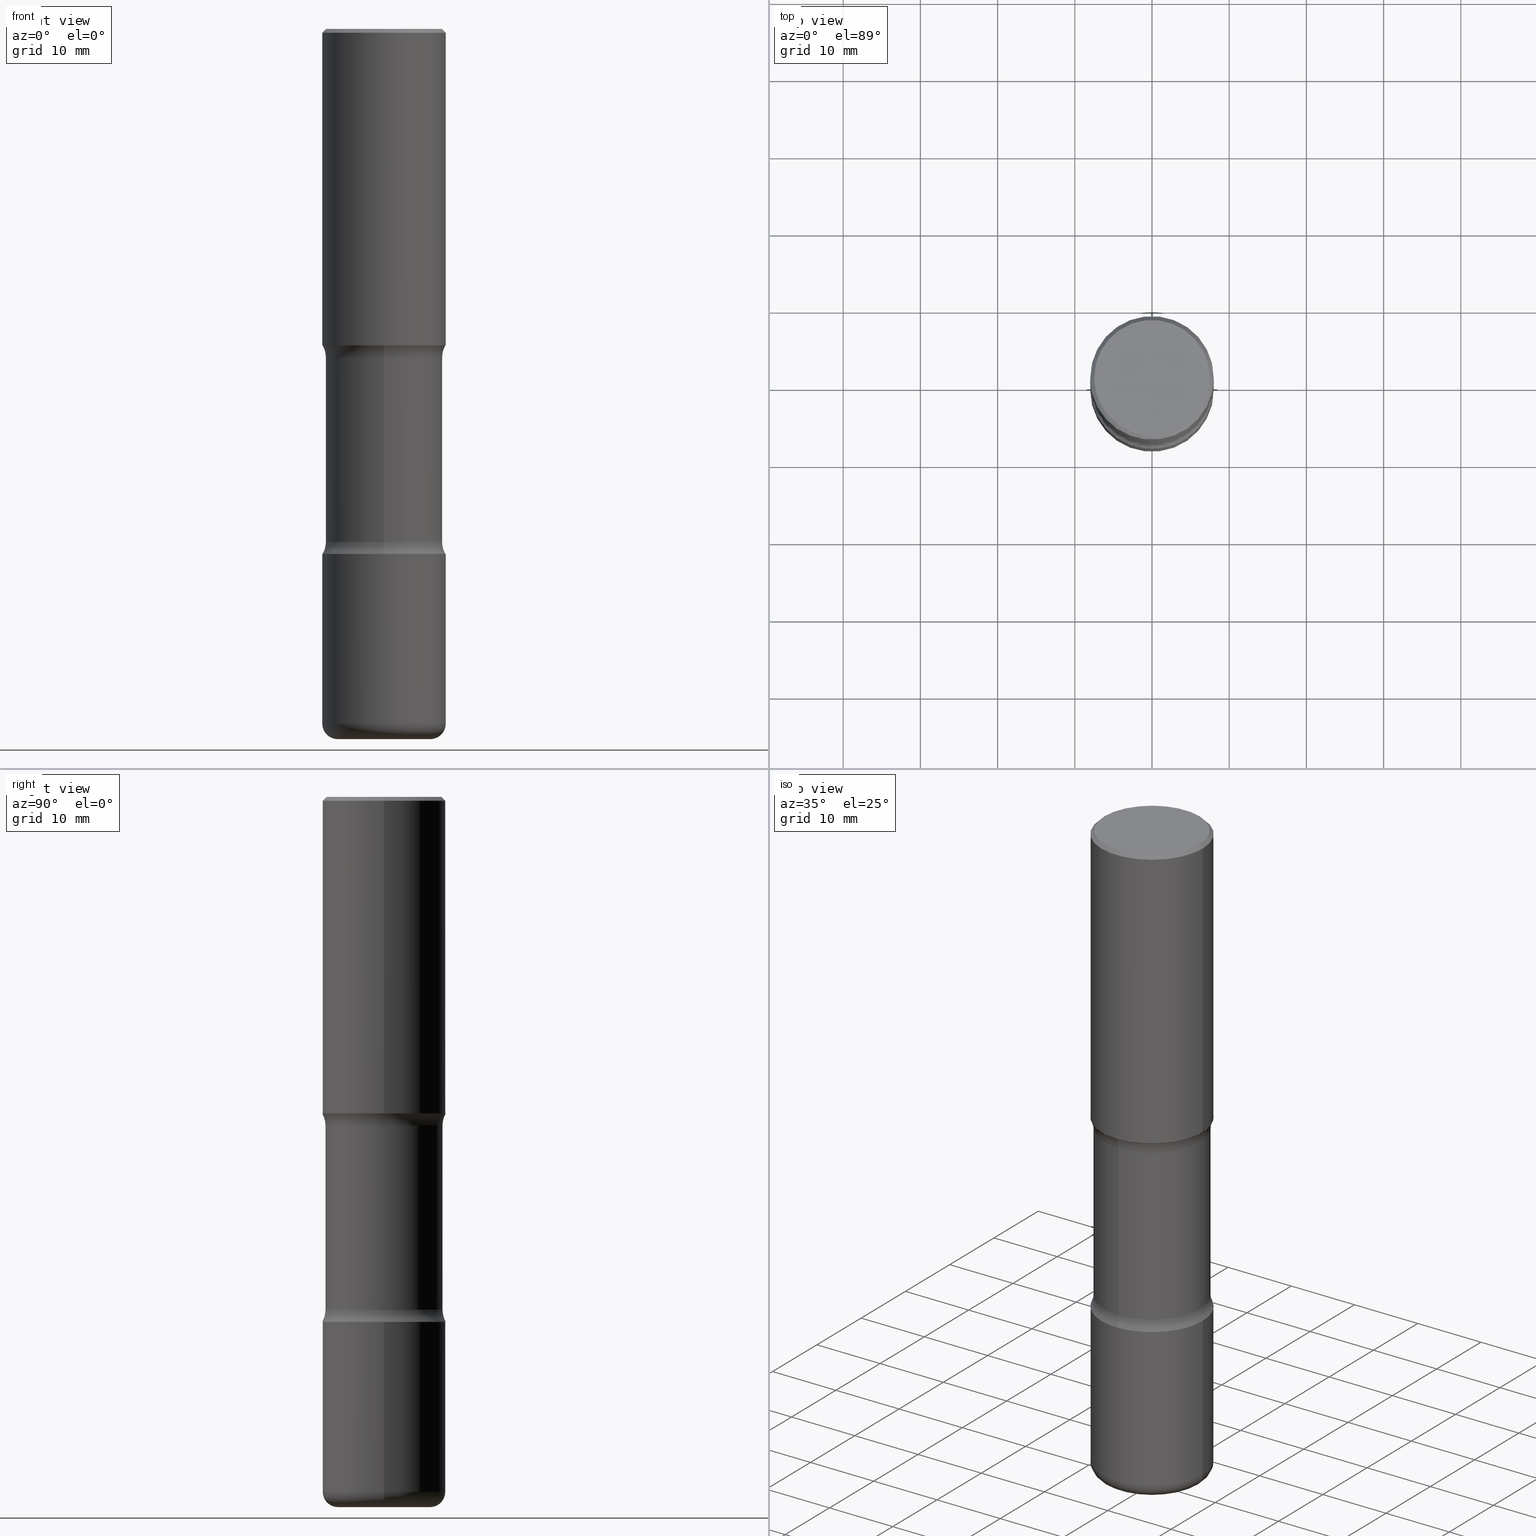
[diagram: canonical four-view strip — front | top / right | iso, engineering-drawing reading convention]
A machine part, canonical four-view strip (front | top / right | iso — engineering-drawing reading convention). The complete STEP part file that produces these views, byte-faithful:
ISO-10303-21;
HEADER;
FILE_DESCRIPTION (( 'STEP AP203' ),
    '1' );
FILE_NAME ('44688.STEP',
    '2024-03-02T02:30:17',
    ( '' ),
    ( '' ),
    'SwSTEP 2.0',
    'SolidWorks 2023',
    '' );
FILE_SCHEMA (( 'CONFIG_CONTROL_DESIGN' ));
ENDSEC;

DATA;
#1 = DIRECTION ( 'NONE',  ( 2.470630472966401970E-29, -3.455448399899237676E-15, -1.000000000000000000 ) ) ;
#2 = ORIENTED_EDGE ( 'NONE', *, *, #230, .F. ) ;
#3 = EDGE_CURVE ( 'NONE', #49, #341, #389, .T. ) ;
#4 = ORIENTED_EDGE ( 'NONE', *, *, #265, .T. ) ;
#5 = VECTOR ( 'NONE', #441, 39.37007874015748143 ) ;
#6 = AXIS2_PLACEMENT_3D ( 'NONE', #437, #534, #66 ) ;
#7 = AXIS2_PLACEMENT_3D ( 'NONE', #378, #548, #57 ) ;
#8 = ORIENTED_EDGE ( 'NONE', *, *, #478, .T. ) ;
#9 = VERTEX_POINT ( 'NONE', #116 ) ;
#10 = EDGE_CURVE ( 'NONE', #174, #259, #254, .T. ) ;
#11 = CIRCLE ( 'NONE', #474, 0.3149500000000002298 ) ;
#12 = APPROVAL_PERSON_ORGANIZATION ( #400, #281, #154 ) ;
#13 = DIRECTION ( 'NONE',  ( -2.445468806185136597E-29, 3.491481338843145583E-15, 1.000000000000000000 ) ) ;
#14 = APPROVAL_STATUS ( 'not_yet_approved' ) ;
#15 = CYLINDRICAL_SURFACE ( 'NONE', #288, 0.2984999999999999321 ) ;
#16 = EDGE_CURVE ( 'NONE', #209, #453, #411, .T. ) ;
#17 = EDGE_LOOP ( 'NONE', ( #480, #517, #19, #95 ) ) ;
#18 = DIRECTION ( 'NONE',  ( -2.445468806185136597E-29, 3.491481338843145583E-15, 1.000000000000000000 ) ) ;
#19 = ORIENTED_EDGE ( 'NONE', *, *, #139, .T. ) ;
#20 = SECURITY_CLASSIFICATION ( '', '', #372 ) ;
#21 = DIRECTION ( 'NONE',  ( 1.000000000000000000, -6.982962677686266711E-15, 0.000000000000000000 ) ) ;
#22 = LINE ( 'NONE', #306, #340 ) ;
#23 = DIRECTION ( 'NONE',  ( 2.445468806185136597E-29, -3.491481338843145583E-15, -1.000000000000000000 ) ) ;
#24 = DIRECTION ( 'NONE',  ( 2.470630472966402250E-29, -3.455448399899237676E-15, -1.000000000000000000 ) ) ;
#25 = EDGE_CURVE ( 'NONE', #341, #86, #509, .T. ) ;
#26 = FACE_OUTER_BOUND ( 'NONE', #45, .T. ) ;
#27 = EDGE_CURVE ( 'NONE', #259, #209, #22, .T. ) ;
#28 = PERSON_AND_ORGANIZATION ( #365, #193 ) ;
#29 = ORIENTED_EDGE ( 'NONE', *, *, #172, .F. ) ;
#30 = DIRECTION ( 'NONE',  ( 1.000000000000000000, -6.982962677686266711E-15, 4.876176775795935232E-29 ) ) ;
#31 = AXIS2_PLACEMENT_3D ( 'NONE', #226, #23, #231 ) ;
#32 = CC_DESIGN_SECURITY_CLASSIFICATION ( #20, ( #224 ) ) ;
#33 = DIRECTION ( 'NONE',  ( 1.000000000000000000, -6.982962677686263555E-15, 0.000000000000000000 ) ) ;
#34 = CARTESIAN_POINT ( 'NONE',  ( 0.3149499999999997857, -2.230543471175005872E-15, -0.02000000000000006981 ) ) ;
#35 = DATE_AND_TIME ( #205, #499 ) ;
#36 = EDGE_LOOP ( 'NONE', ( #479, #4, #376, #379 ) ) ;
#37 = DIRECTION ( 'NONE',  ( 1.000000000000000000, -6.982962677686265922E-15, 4.876176775795935793E-29 ) ) ;
#38 = PRODUCT ( '44688', '44688', '', ( #539 ) ) ;
#39 = ORIENTED_EDGE ( 'NONE', *, *, #119, .F. ) ;
#40 = DIRECTION ( 'NONE',  ( 0.7071067811865471286, -7.319954787623254468E-15, -0.7071067811865479058 ) ) ;
#41 = VECTOR ( 'NONE', #40, 39.37007874015748143 ) ;
#42 = EDGE_CURVE ( 'NONE', #44, #303, #90, .T. ) ;
#43 = EDGE_LOOP ( 'NONE', ( #277, #472 ) ) ;
#44 = VERTEX_POINT ( 'NONE', #191 ) ;
#45 = EDGE_LOOP ( 'NONE', ( #39, #221, #236, #405 ) ) ;
#46 = TOROIDAL_SURFACE ( 'NONE', #433, 0.4235000000000000986, 0.1250000000000000278 ) ;
#47 = CIRCLE ( 'NONE', #331, 0.1250000000000000000 ) ;
#48 = AXIS2_PLACEMENT_3D ( 'NONE', #473, #558, #511 ) ;
#49 = VERTEX_POINT ( 'NONE', #67 ) ;
#50 = ORIENTED_EDGE ( 'NONE', *, *, #367, .F. ) ;
#51 = DIRECTION ( 'NONE',  ( -2.445468806185136597E-29, 3.491481338843145583E-15, 1.000000000000000000 ) ) ;
#52 = PERSON_AND_ORGANIZATION ( #365, #193 ) ;
#53 = AXIS2_PLACEMENT_3D ( 'NONE', #275, #198, #360 ) ;
#54 = CIRCLE ( 'NONE', #518, 0.2949499999999997679 ) ;
#55 = ADVANCED_FACE ( 'NONE', ( #159 ), #196, .F. ) ;
#56 = CARTESIAN_POINT ( 'NONE',  ( 4.890937612370289799E-31, -6.982962677686315028E-17, -0.02000000000000006981 ) ) ;
#57 = DIRECTION ( 'NONE',  ( 1.000000000000000000, 0.000000000000000000, 0.000000000000000000 ) ) ;
#58 = DIRECTION ( 'NONE',  ( -1.000000000000000000, 7.105427357601008170E-15, 0.000000000000000000 ) ) ;
#59 = DATE_AND_TIME ( #269, #79 ) ;
#60 = DIRECTION ( 'NONE',  ( 6.982962677686265922E-15, 1.000000000000000000, -3.660767830705880744E-15 ) ) ;
#61 = DIRECTION ( 'NONE',  ( 1.000000000000000000, -6.982962677686266711E-15, 4.876176775795936353E-29 ) ) ;
#62 = DESIGN_CONTEXT ( 'detailed design', #526, 'design' ) ;
#63 = DIRECTION ( 'NONE',  ( -1.000000000000000000, 6.982962677686265922E-15, -4.883557194083112340E-29 ) ) ;
#64 = AXIS2_PLACEMENT_3D ( 'NONE', #267, #106, #61 ) ;
#65 = CIRCLE ( 'NONE', #498, 0.3149500000000001743 ) ;
#66 = DIRECTION ( 'NONE',  ( 6.860497997771529985E-15, 1.000000000000000000, 0.000000000000000000 ) ) ;
#67 = CARTESIAN_POINT ( 'NONE',  ( 2.199284095337355741E-15, 0.3149499999999907374, -2.677100000000002034 ) ) ;
#68 = ADVANCED_FACE ( 'NONE', ( #354 ), #155, .F. ) ;
#69 = ORIENTED_EDGE ( 'NONE', *, *, #300, .T. ) ;
#70 = ADVANCED_BREP_SHAPE_REPRESENTATION ( '44688', ( #128, #305, #494, #7 ), #105 ) ;
#71 = DIRECTION ( 'NONE',  ( 2.438088387897960049E-29, -3.491481338843145188E-15, -1.000000000000000000 ) ) ;
#72 = PERSON_AND_ORGANIZATION_ROLE ( 'classification_officer' ) ;
#73 = ORIENTED_EDGE ( 'NONE', *, *, #10, .T. ) ;
#74 = DIRECTION ( 'NONE',  ( 2.470630472966402250E-29, -3.455448399899237676E-15, -1.000000000000000000 ) ) ;
#75 = PERSON_AND_ORGANIZATION ( #365, #193 ) ;
#76 = CLOSED_SHELL ( 'NONE', ( #258, #268, #444, #543, #336, #390, #101, #346 ) ) ;
#77 = CIRCLE ( 'NONE', #426, 0.3149500000000002298 ) ;
#78 = DIRECTION ( 'NONE',  ( -2.445468806185136597E-29, 3.491481338843145583E-15, 1.000000000000000000 ) ) ;
#79 = LOCAL_TIME ( 21, 30, 17.00000000000000000, #491 ) ;
#80 = LINE ( 'NONE', #417, #177 ) ;
#81 = PRODUCT_DEFINITION_SHAPE ( 'NONE', 'NONE',  #380 ) ;
#82 = APPROVAL_DATE_TIME ( #289, #153 ) ;
#83 = ORIENTED_EDGE ( 'NONE', *, *, #172, .T. ) ;
#84 = CYLINDRICAL_SURFACE ( 'NONE', #342, 0.3149500000000000632 ) ;
#85 = CARTESIAN_POINT ( 'NONE',  ( -2.047858652334712692E-15, -0.2985000000000125331, -3.621999999999999442 ) ) ;
#86 = VERTEX_POINT ( 'NONE', #136 ) ;
#87 = ORIENTED_EDGE ( 'NONE', *, *, #3, .T. ) ;
#88 = CARTESIAN_POINT ( 'NONE',  ( -2.160713844398106286E-15, -0.3149500000000058919, -1.614099999999999424 ) ) ;
#89 = ORIENTED_EDGE ( 'NONE', *, *, #500, .F. ) ;
#90 = CIRCLE ( 'NONE', #496, 0.2949499999999997679 ) ;
#91 = CIRCLE ( 'NONE', #114, 0.2984999999999998765 ) ;
#92 = CARTESIAN_POINT ( 'NONE',  ( 8.665029620955795190E-29, -1.237136582792291865E-14, -3.543300000000000338 ) ) ;
#93 = VERTEX_POINT ( 'NONE', #345 ) ;
#94 = ORIENTED_EDGE ( 'NONE', *, *, #403, .F. ) ;
#95 = ORIENTED_EDGE ( 'NONE', *, *, #280, .F. ) ;
#96 = EDGE_CURVE ( 'NONE', #93, #282, #287, .T. ) ;
#97 = APPROVAL ( #14, 'UNSPECIFIED' ) ;
#98 = CIRCLE ( 'NONE', #375, 0.07869999999999956197 ) ;
#99 = DIRECTION ( 'NONE',  ( -1.000000000000000000, 6.982962677686265922E-15, -4.876176775795935793E-29 ) ) ;
#100 = DIRECTION ( 'NONE',  ( 6.982962677686266711E-15, 1.000000000000000000, -3.660767830705881533E-15 ) ) ;
#101 = ADVANCED_FACE ( 'NONE', ( #316 ), #46, .F. ) ;
#102 = DIRECTION ( 'NONE',  ( 1.000000000000000000, -6.982962677686265133E-15, 0.000000000000000000 ) ) ;
#103 = AXIS2_PLACEMENT_3D ( 'NONE', #229, #402, #536 ) ;
#104 = CIRCLE ( 'NONE', #176, 0.3149500000000001743 ) ;
#105 =( GEOMETRIC_REPRESENTATION_CONTEXT ( 3 ) GLOBAL_UNCERTAINTY_ASSIGNED_CONTEXT ( ( #324 ) ) GLOBAL_UNIT_ASSIGNED_CONTEXT ( ( #466, #204, #201 ) ) REPRESENTATION_CONTEXT ( 'NONE', 'WORKASPACE' ) );
#106 = DIRECTION ( 'NONE',  ( -2.445468806185136597E-29, 3.491481338843145583E-15, 1.000000000000000000 ) ) ;
#107 = APPROVAL_DATE_TIME ( #440, #97 ) ;
#108 = DIRECTION ( 'NONE',  ( 1.000000000000000000, -6.982962677686265922E-15, 4.876053491004738270E-29 ) ) ;
#109 = DIRECTION ( 'NONE',  ( 2.470630472966402250E-29, -3.455448399899237676E-15, -1.000000000000000000 ) ) ;
#110 = LINE ( 'NONE', #448, #132 ) ;
#111 = ADVANCED_FACE ( 'NONE', ( #492 ), #321, .T. ) ;
#112 = ADVANCED_FACE ( 'NONE', ( #516 ), #531, .T. ) ;
#113 = ORIENTED_EDGE ( 'NONE', *, *, #3, .F. ) ;
#114 = AXIS2_PLACEMENT_3D ( 'NONE', #527, #311, #488 ) ;
#115 = CARTESIAN_POINT ( 'NONE',  ( 6.347495963775277280E-29, -9.198928257466199369E-15, -2.615116957964295441 ) ) ;
#116 = CARTESIAN_POINT ( 'NONE',  ( 0.3149499999999998967, -1.457064992326020852E-14, -3.543300000000000338 ) ) ;
#117 = VERTEX_POINT ( 'NONE', #493 ) ;
#118 = DIRECTION ( 'NONE',  ( 1.000000000000000000, -6.982962677686266711E-15, 4.876176775795935232E-29 ) ) ;
#119 = EDGE_CURVE ( 'NONE', #301, #146, #148, .T. ) ;
#120 = DIRECTION ( 'NONE',  ( -2.445468806185136597E-29, 3.491481338843145583E-15, 1.000000000000000000 ) ) ;
#121 = PERSON_AND_ORGANIZATION ( #365, #193 ) ;
#122 = ORIENTED_EDGE ( 'NONE', *, *, #130, .T. ) ;
#123 = CIRCLE ( 'NONE', #240, 0.3149499999999997857 ) ;
#124 = DIRECTION ( 'NONE',  ( 1.000000000000000000, -6.982962677686266711E-15, 4.876176775795936353E-29 ) ) ;
#125 = LENGTH_MEASURE_WITH_UNIT ( LENGTH_MEASURE( 0.02539999999999999897 ), #297 );
#126 = EDGE_LOOP ( 'NONE', ( #344, #129, #8, #113 ) ) ;
#127 = FACE_OUTER_BOUND ( 'NONE', #131, .T. ) ;
#128 = MANIFOLD_SOLID_BREP ( 'Body-Move/Copy2[1]', #397 ) ;
#129 = ORIENTED_EDGE ( 'NONE', *, *, #230, .T. ) ;
#130 = EDGE_CURVE ( 'NONE', #435, #93, #181, .T. ) ;
#131 = EDGE_LOOP ( 'NONE', ( #163, #381, #255, #272 ) ) ;
#132 = VECTOR ( 'NONE', #490, 39.37007874015748143 ) ;
#133 = ORIENTED_EDGE ( 'NONE', *, *, #151, .T. ) ;
#134 = EDGE_CURVE ( 'NONE', #533, #9, #98, .T. ) ;
#135 = ORIENTED_EDGE ( 'NONE', *, *, #134, .T. ) ;
#136 = CARTESIAN_POINT ( 'NONE',  ( -2.104286248366408700E-15, -0.2985000000000090914, -2.615116957964294109 ) ) ;
#137 = AXIS2_PLACEMENT_3D ( 'NONE', #183, #309, #102 ) ;
#138 = CARTESIAN_POINT ( 'NONE',  ( 0.3149500000000000632, -2.199284095337290265E-15, 1.535751875536930410E-29 ) ) ;
#139 = EDGE_CURVE ( 'NONE', #453, #209, #123, .T. ) ;
#140 = CARTESIAN_POINT ( 'NONE',  ( -0.3149500000000000632, -6.148604816253552124E-16, -1.614100000000000312 ) ) ;
#141 = CALENDAR_DATE ( 2024, 1, 3 ) ;
#142 = PRODUCT_RELATED_PRODUCT_CATEGORY ( 'detail', '', ( #38 ) ) ;
#143 = CARTESIAN_POINT ( 'NONE',  ( 0.2362500000000001821, -1.402109076052630027E-14, -3.543300000000000338 ) ) ;
#144 = AXIS2_PLACEMENT_3D ( 'NONE', #263, #150, #540 ) ;
#145 = VECTOR ( 'NONE', #283, 39.37007874015748143 ) ;
#146 = VERTEX_POINT ( 'NONE', #404 ) ;
#147 = TOROIDAL_SURFACE ( 'NONE', #312, 0.4234999999999999321, 0.1250000000000000000 ) ;
#148 = LINE ( 'NONE', #273, #5 ) ;
#149 = COORDINATED_UNIVERSAL_TIME_OFFSET ( 5, 0, .BEHIND. ) ;
#150 = DIRECTION ( 'NONE',  ( 1.000000000000000000, -6.860497997771530774E-15, 4.841240155857558238E-29 ) ) ;
#151 = EDGE_CURVE ( 'NONE', #298, #533, #308, .T. ) ;
#152 = FACE_OUTER_BOUND ( 'NONE', #242, .T. ) ;
#153 = APPROVAL ( #545, 'UNSPECIFIED' ) ;
#154 = APPROVAL_ROLE ( '' ) ;
#155 = PLANE ( 'NONE',  #175 ) ;
#156 = ORIENTED_EDGE ( 'NONE', *, *, #16, .T. ) ;
#157 = DIRECTION ( 'NONE',  ( -2.445468806185136597E-29, 3.491481338843145583E-15, 1.000000000000000000 ) ) ;
#158 = APPLICATION_PROTOCOL_DEFINITION ( 'international standard', 'config_control_design', 1994, #526 ) ;
#159 = FACE_OUTER_BOUND ( 'NONE', #515, .T. ) ;
#160 = CARTESIAN_POINT ( 'NONE',  ( -0.3149499999999998967, -1.013351148164648424E-14, -3.543300000000000338 ) ) ;
#161 = CARTESIAN_POINT ( 'NONE',  ( -0.2362500000000001821, -1.055049983885156031E-14, -3.621999999999999886 ) ) ;
#162 = DIRECTION ( 'NONE',  ( 2.470630472966402250E-29, -3.455448399899237676E-15, -1.000000000000000000 ) ) ;
#163 = ORIENTED_EDGE ( 'NONE', *, *, #27, .F. ) ;
#164 = CYLINDRICAL_SURFACE ( 'NONE', #412, 0.3149499999999999522 ) ;
#165 = CARTESIAN_POINT ( 'NONE',  ( 6.546764541038231284E-29, -9.347044692216987539E-15, -2.677100000000000701 ) ) ;
#166 = TOROIDAL_SURFACE ( 'NONE', #449, 0.2362500000000001821, 0.07869999999999958973 ) ;
#167 = CARTESIAN_POINT ( 'NONE',  ( -0.3149499999999997857, 2.129454468560425389E-15, -0.02000000000000006981 ) ) ;
#168 = CC_DESIGN_APPROVAL ( #153, ( #20 ) ) ;
#169 = CARTESIAN_POINT ( 'NONE',  ( 4.051117814422036389E-29, -5.920308863460726837E-15, -1.676083042035706239 ) ) ;
#170 = ORIENTED_EDGE ( 'NONE', *, *, #429, .F. ) ;
#171 = LINE ( 'NONE', #335, #41 ) ;
#172 = EDGE_CURVE ( 'NONE', #298, #301, #529, .T. ) ;
#173 = DIRECTION ( 'NONE',  ( 6.982962677686265922E-15, 1.000000000000000000, -3.660767830705880744E-15 ) ) ;
#174 = VERTEX_POINT ( 'NONE', #347 ) ;
#175 = AXIS2_PLACEMENT_3D ( 'NONE', #454, #71, #227 ) ;
#176 = AXIS2_PLACEMENT_3D ( 'NONE', #505, #374, #330 ) ;
#177 = VECTOR ( 'NONE', #1, 39.37007874015748143 ) ;
#178 = EDGE_CURVE ( 'NONE', #533, #298, #262, .T. ) ;
#179 = EDGE_LOOP ( 'NONE', ( #186, #261 ) ) ;
#180 = ORIENTED_EDGE ( 'NONE', *, *, #130, .F. ) ;
#181 = CIRCLE ( 'NONE', #190, 0.2984999999999998765 ) ;
#182 = LOCAL_TIME ( 21, 30, 17.00000000000000000, #149 ) ;
#183 = CARTESIAN_POINT ( 'NONE',  ( 8.857488016002564476E-29, -1.264614540928987199E-14, -3.621999999999999886 ) ) ;
#184 = DIMENSIONAL_EXPONENTS ( 1.000000000000000000, 0.000000000000000000, 0.000000000000000000, 0.000000000000000000, 0.000000000000000000, 0.000000000000000000, 0.000000000000000000 ) ;
#185 = DIRECTION ( 'NONE',  ( -2.445468806185136877E-29, 3.491481338843145188E-15, 1.000000000000000000 ) ) ;
#186 = ORIENTED_EDGE ( 'NONE', *, *, #178, .F. ) ;
#187 = LINE ( 'NONE', #138, #434 ) ;
#188 = DATE_TIME_ROLE ( 'creation_date' ) ;
#189 = AXIS2_PLACEMENT_3D ( 'NONE', #200, #245, #476 ) ;
#190 = AXIS2_PLACEMENT_3D ( 'NONE', #315, #439, #100 ) ;
#191 = CARTESIAN_POINT ( 'NONE',  ( -0.2949499999999997679, 2.094539655171993740E-15, 1.280553747028672311E-17 ) ) ;
#192 = EDGE_CURVE ( 'NONE', #117, #146, #65, .T. ) ;
#193 = ORGANIZATION ( 'UNSPECIFIED', 'UNSPECIFIED', '' ) ;
#194 = EDGE_CURVE ( 'NONE', #174, #453, #110, .T. ) ;
#195 = DIRECTION ( 'NONE',  ( 1.000000000000000000, -6.982962677686269866E-15, 4.883557194083114022E-29 ) ) ;
#196 = PLANE ( 'NONE',  #307 ) ;
#197 = CARTESIAN_POINT ( 'NONE',  ( -2.160713844398079465E-15, -0.3149500000000095556, -2.677099999999999813 ) ) ;
#198 = DIRECTION ( 'NONE',  ( -2.445468806185136597E-29, 3.491481338843145583E-15, 1.000000000000000000 ) ) ;
#199 = DIRECTION ( 'NONE',  ( 2.470630472966401970E-29, -3.455448399899237676E-15, -1.000000000000000000 ) ) ;
#200 = CARTESIAN_POINT ( 'NONE',  ( 1.470677427444996294E-28, -4.269634566494563927E-15, -3.621999999999999886 ) ) ;
#201 =( NAMED_UNIT ( * ) SI_UNIT ( $, .STERADIAN. ) SOLID_ANGLE_UNIT ( ) );
#202 = AXIS2_PLACEMENT_3D ( 'NONE', #165, #368, #207 ) ;
#203 = PLANE ( 'NONE',  #510 ) ;
#204 =( NAMED_UNIT ( * ) PLANE_ANGLE_UNIT ( ) SI_UNIT ( $, .RADIAN. ) );
#205 = CALENDAR_DATE ( 2024, 1, 3 ) ;
#206 = FACE_OUTER_BOUND ( 'NONE', #396, .T. ) ;
#207 = DIRECTION ( 'NONE',  ( 1.000000000000000000, -6.982962677686265922E-15, 0.000000000000000000 ) ) ;
#208 = APPROVAL_DATE_TIME ( #456, #281 ) ;
#209 = VERTEX_POINT ( 'NONE', #395 ) ;
#210 = FACE_OUTER_BOUND ( 'NONE', #43, .T. ) ;
#211 = DIRECTION ( 'NONE',  ( 2.470630472966402250E-29, -3.455448399899237676E-15, -1.000000000000000000 ) ) ;
#212 = ADVANCED_FACE ( 'NONE', ( #398 ), #166, .T. ) ;
#213 = AXIS2_PLACEMENT_3D ( 'NONE', #416, #157, #33 ) ;
#214 = CARTESIAN_POINT ( 'NONE',  ( 3.920484348274944932E-29, -5.673903043124096265E-15, -1.614100000000000312 ) ) ;
#215 = LOCAL_TIME ( 21, 30, 17.00000000000000000, #458 ) ;
#216 = ORIENTED_EDGE ( 'NONE', *, *, #192, .F. ) ;
#217 = ORIENTED_EDGE ( 'NONE', *, *, #25, .F. ) ;
#218 = ORIENTED_EDGE ( 'NONE', *, *, #319, .T. ) ;
#219 = AXIS2_PLACEMENT_3D ( 'NONE', #501, #63, #313 ) ;
#220 = AXIS2_PLACEMENT_3D ( 'NONE', #406, #409, #362 ) ;
#221 = ORIENTED_EDGE ( 'NONE', *, *, #367, .T. ) ;
#222 = CARTESIAN_POINT ( 'NONE',  ( 3.920484348274944932E-29, -5.673903043124096265E-15, -1.614100000000000312 ) ) ;
#223 = AXIS2_PLACEMENT_3D ( 'NONE', #547, #74, #318 ) ;
#224 = PRODUCT_DEFINITION_FORMATION_WITH_SPECIFIED_SOURCE ( 'ANY', '', #38, .NOT_KNOWN. ) ;
#225 = FACE_OUTER_BOUND ( 'NONE', #17, .T. ) ;
#226 = CARTESIAN_POINT ( 'NONE',  ( 4.890937612370289799E-31, -6.982962677686315028E-17, -0.02000000000000006981 ) ) ;
#227 = DIRECTION ( 'NONE',  ( -1.000000000000000000, 6.982962677686265922E-15, -4.876176775795935793E-29 ) ) ;
#228 = CIRCLE ( 'NONE', #6, 0.1250000000000000278 ) ;
#229 = CARTESIAN_POINT ( 'NONE',  ( 4.890937612370289799E-31, -6.982962677686315028E-17, -0.02000000000000006981 ) ) ;
#230 = EDGE_CURVE ( 'NONE', #304, #86, #228, .T. ) ;
#231 = DIRECTION ( 'NONE',  ( -1.000000000000000000, 6.982962677686266711E-15, 0.000000000000000000 ) ) ;
#232 = DIRECTION ( 'NONE',  ( 6.982962677686265922E-15, 1.000000000000000000, -3.455448399899237676E-15 ) ) ;
#233 = CARTESIAN_POINT ( 'NONE',  ( 2.199284095337330103E-15, 0.3149499999999945676, -1.614100000000001423 ) ) ;
#234 = EDGE_LOOP ( 'NONE', ( #94, #419, #422, #156 ) ) ;
#235 = SHAPE_DEFINITION_REPRESENTATION ( #81, #70 ) ;
#236 = ORIENTED_EDGE ( 'NONE', *, *, #264, .T. ) ;
#237 = DIRECTION ( 'NONE',  ( -6.982962677686266711E-15, -1.000000000000000000, 0.000000000000000000 ) ) ;
#238 = CC_DESIGN_DATE_AND_TIME_ASSIGNMENT ( #35, #241, ( #20 ) ) ;
#239 = DIRECTION ( 'NONE',  ( -1.000000000000000000, 6.982962677686266711E-15, 0.000000000000000000 ) ) ;
#240 = AXIS2_PLACEMENT_3D ( 'NONE', #56, #13, #21 ) ;
#241 = DATE_TIME_ROLE ( 'classification_date' ) ;
#242 = EDGE_LOOP ( 'NONE', ( #122, #430, #217, #519 ) ) ;
#243 = AXIS2_PLACEMENT_3D ( 'NONE', #337, #544, #250 ) ;
#244 = FACE_OUTER_BOUND ( 'NONE', #447, .T. ) ;
#245 = DIRECTION ( 'NONE',  ( 2.438088387897960049E-29, -3.491481338843145188E-15, -1.000000000000000000 ) ) ;
#246 = CARTESIAN_POINT ( 'NONE',  ( 4.051117814422036389E-29, -5.920308863460726837E-15, -1.676083042035706239 ) ) ;
#247 = COORDINATED_UNIVERSAL_TIME_OFFSET ( 5, 0, .BEHIND. ) ;
#248 = DIRECTION ( 'NONE',  ( -2.438088387897960049E-29, 3.491481338843145188E-15, 1.000000000000000000 ) ) ;
#249 = ADVANCED_FACE ( 'NONE', ( #225 ), #481, .T. ) ;
#250 = DIRECTION ( 'NONE',  ( 1.000000000000000000, -6.982962677686268288E-15, 0.000000000000000000 ) ) ;
#251 = CC_DESIGN_PERSON_AND_ORGANIZATION_ASSIGNMENT ( #408, #506, ( #224 ) ) ;
#252 = DIRECTION ( 'NONE',  ( -2.445468806185136597E-29, 3.491481338843145583E-15, 1.000000000000000000 ) ) ;
#253 = FACE_OUTER_BOUND ( 'NONE', #234, .T. ) ;
#254 = CIRCLE ( 'NONE', #53, 0.3149500000000000632 ) ;
#255 = ORIENTED_EDGE ( 'NONE', *, *, #194, .T. ) ;
#256 = AXIS2_PLACEMENT_3D ( 'NONE', #465, #248, #37 ) ;
#257 = DIRECTION ( 'NONE',  ( 6.982962677686265922E-15, 1.000000000000000000, -3.455448399899237676E-15 ) ) ;
#258 = ADVANCED_FACE ( 'NONE', ( #152 ), #15, .T. ) ;
#259 = VERTEX_POINT ( 'NONE', #140 ) ;
#260 = EDGE_CURVE ( 'NONE', #282, #295, #77, .T. ) ;
#261 = ORIENTED_EDGE ( 'NONE', *, *, #151, .F. ) ;
#262 = CIRCLE ( 'NONE', #460, 0.2362500000000001821 ) ;
#263 = CARTESIAN_POINT ( 'NONE',  ( -2.905420902056202653E-15, -0.4235000000000058717, -1.676083042035704684 ) ) ;
#264 = EDGE_CURVE ( 'NONE', #9, #117, #187, .T. ) ;
#265 = EDGE_CURVE ( 'NONE', #93, #435, #91, .T. ) ;
#266 = CARTESIAN_POINT ( 'NONE',  ( 8.857488016002564476E-29, -1.264614540928987199E-14, -3.621999999999999886 ) ) ;
#267 = CARTESIAN_POINT ( 'NONE',  ( 0.000000000000000000, 0.000000000000000000, 0.000000000000000000 ) ) ;
#268 = ADVANCED_FACE ( 'NONE', ( #497 ), #557, .F. ) ;
#269 = CALENDAR_DATE ( 2024, 1, 3 ) ;
#270 = CARTESIAN_POINT ( 'NONE',  ( 2.059624841783562486E-15, 0.2949499999999997679, -1.023409652156634153E-15 ) ) ;
#271 = CARTESIAN_POINT ( 'NONE',  ( 8.665029620955795190E-29, -1.237136582792291865E-14, -3.543300000000000338 ) ) ;
#272 = ORIENTED_EDGE ( 'NONE', *, *, #16, .F. ) ;
#273 = CARTESIAN_POINT ( 'NONE',  ( -0.3149500000000000632, 2.237854346276435985E-15, -1.549218606675782956E-29 ) ) ;
#274 = AXIS2_PLACEMENT_3D ( 'NONE', #514, #555, #333 ) ;
#275 = CARTESIAN_POINT ( 'NONE',  ( 3.947231200063430288E-29, -5.635600029026721857E-15, -1.614100000000000312 ) ) ;
#276 = CIRCLE ( 'NONE', #530, 0.2984999999999999876 ) ;
#277 = ORIENTED_EDGE ( 'NONE', *, *, #471, .T. ) ;
#278 = CARTESIAN_POINT ( 'NONE',  ( 0.2949499999999997679, -2.127023677808858891E-15, 1.280553747031588939E-17 ) ) ;
#279 = CARTESIAN_POINT ( 'NONE',  ( -3.131554243005663153E-46, 4.471029511141347348E-32, 1.280553747030124924E-17 ) ) ;
#280 = EDGE_CURVE ( 'NONE', #44, #209, #423, .T. ) ;
#281 = APPROVAL ( #535, 'UNSPECIFIED' ) ;
#282 = VERTEX_POINT ( 'NONE', #88 ) ;
#283 = DIRECTION ( 'NONE',  ( -0.7071067811865471286, 2.468850131082252722E-15, -0.7071067811865479058 ) ) ;
#284 = DIRECTION ( 'NONE',  ( 2.445468806185136597E-29, -3.491481338843145583E-15, -1.000000000000000000 ) ) ;
#285 = CARTESIAN_POINT ( 'NONE',  ( 0.000000000000000000, 0.000000000000000000, 0.000000000000000000 ) ) ;
#286 = DIRECTION ( 'NONE',  ( 1.000000000000000000, -6.982962677686263555E-15, 0.000000000000000000 ) ) ;
#287 = CIRCLE ( 'NONE', #144, 0.1250000000000000000 ) ;
#288 = AXIS2_PLACEMENT_3D ( 'NONE', #393, #484, #524 ) ;
#289 = DATE_AND_TIME ( #369, #215 ) ;
#290 = AXIS2_PLACEMENT_3D ( 'NONE', #503, #284, #239 ) ;
#291 = FACE_OUTER_BOUND ( 'NONE', #520, .T. ) ;
#292 = ADVANCED_FACE ( 'NONE', ( #127 ), #164, .T. ) ;
#293 = CC_DESIGN_DATE_AND_TIME_ASSIGNMENT ( #59, #188, ( #380 ) ) ;
#294 = CARTESIAN_POINT ( 'NONE',  ( 6.393627348577659776E-29, -9.132865488793823452E-15, -2.615116957964295441 ) ) ;
#295 = VERTEX_POINT ( 'NONE', #233 ) ;
#296 = CARTESIAN_POINT ( 'NONE',  ( 0.000000000000000000, 0.000000000000000000, 0.000000000000000000 ) ) ;
#297 =( LENGTH_UNIT ( ) NAMED_UNIT ( * ) SI_UNIT ( $, .METRE. ) );
#298 = VERTEX_POINT ( 'NONE', #161 ) ;
#299 = DIRECTION ( 'NONE',  ( 2.470630472966402250E-29, -3.455448399899237676E-15, -1.000000000000000000 ) ) ;
#300 = EDGE_CURVE ( 'NONE', #303, #44, #54, .T. ) ;
#301 = VERTEX_POINT ( 'NONE', #160 ) ;
#302 = AXIS2_PLACEMENT_3D ( 'NONE', #92, #325, #286 ) ;
#303 = VERTEX_POINT ( 'NONE', #278 ) ;
#304 = VERTEX_POINT ( 'NONE', #197 ) ;
#305 = MANIFOLD_SOLID_BREP ( 'Body-Move/Copy2[2]', #556 ) ;
#306 = CARTESIAN_POINT ( 'NONE',  ( -0.3149499999999999522, 2.237854346276435196E-15, -1.549218606675782116E-29 ) ) ;
#307 = AXIS2_PLACEMENT_3D ( 'NONE', #270, #442, #99 ) ;
#308 = CIRCLE ( 'NONE', #137, 0.2362500000000001821 ) ;
#309 = DIRECTION ( 'NONE',  ( -2.445468806185136597E-29, 3.491481338843145583E-15, 1.000000000000000000 ) ) ;
#310 = DIRECTION ( 'NONE',  ( 2.470630472966402250E-29, -3.455448399899237676E-15, -1.000000000000000000 ) ) ;
#311 = DIRECTION ( 'NONE',  ( 2.470630472966402250E-29, -3.455448399899237676E-15, -1.000000000000000000 ) ) ;
#312 = AXIS2_PLACEMENT_3D ( 'NONE', #169, #299, #371 ) ;
#313 = DIRECTION ( 'NONE',  ( -6.982962677686265133E-15, -1.000000000000000000, 0.000000000000000000 ) ) ;
#314 = CARTESIAN_POINT ( 'NONE',  ( 6.546764541038231284E-29, -9.347044692216987539E-15, -2.677100000000000701 ) ) ;
#315 = CARTESIAN_POINT ( 'NONE',  ( 4.073621540735516440E-29, -5.888082246547263507E-15, -1.676083042035706239 ) ) ;
#316 = FACE_OUTER_BOUND ( 'NONE', #468, .T. ) ;
#317 = ORIENTED_EDGE ( 'NONE', *, *, #429, .T. ) ;
#318 = DIRECTION ( 'NONE',  ( 6.982962677686265922E-15, 1.000000000000000000, -3.660767830705881533E-15 ) ) ;
#319 = EDGE_CURVE ( 'NONE', #435, #295, #47, .T. ) ;
#320 = AXIS2_PLACEMENT_3D ( 'NONE', #351, #443, #58 ) ;
#321 = PLANE ( 'NONE',  #189 ) ;
#322 = APPROVAL_PERSON_ORGANIZATION ( #121, #153, #553 ) ;
#323 = DIRECTION ( 'NONE',  ( 6.982962677686265922E-15, 1.000000000000000000, -3.455448399899237676E-15 ) ) ;
#324 = UNCERTAINTY_MEASURE_WITH_UNIT (LENGTH_MEASURE( 1.000000000000000082E-05 ), #466, 'distance_accuracy_value', 'NONE');
#325 = DIRECTION ( 'NONE',  ( -2.445468806185136597E-29, 3.491481338843145583E-15, 1.000000000000000000 ) ) ;
#326 = CYLINDRICAL_SURFACE ( 'NONE', #223, 0.2984999999999999321 ) ;
#327 = LINE ( 'NONE', #85, #413 ) ;
#328 = CALENDAR_DATE ( 2024, 1, 3 ) ;
#329 = DIRECTION ( 'NONE',  ( 2.470630472966402250E-29, -3.455448399899237676E-15, -1.000000000000000000 ) ) ;
#330 = DIRECTION ( 'NONE',  ( 6.982962677686264344E-15, 1.000000000000000000, -3.469564049740291192E-15 ) ) ;
#331 = AXIS2_PLACEMENT_3D ( 'NONE', #420, #457, #237 ) ;
#332 = CONICAL_SURFACE ( 'NONE', #290, 0.3149499999999997857, 0.7853981633974477239 ) ;
#333 = DIRECTION ( 'NONE',  ( -6.982962677686265922E-15, -1.000000000000000000, 3.455448399899237676E-15 ) ) ;
#334 = ORIENTED_EDGE ( 'NONE', *, *, #96, .F. ) ;
#335 = CARTESIAN_POINT ( 'NONE',  ( 0.3149499999999997857, -2.230543471175005872E-15, -0.02000000000000006981 ) ) ;
#336 = ADVANCED_FACE ( 'NONE', ( #244 ), #203, .F. ) ;
#337 = CARTESIAN_POINT ( 'NONE',  ( 3.947231200063430288E-29, -5.635600029026721857E-15, -1.614100000000000312 ) ) ;
#338 = ORIENTED_EDGE ( 'NONE', *, *, #119, .T. ) ;
#339 = ADVANCED_FACE ( 'NONE', ( #508 ), #523, .T. ) ;
#340 = VECTOR ( 'NONE', #452, 39.37007874015748143 ) ;
#341 = VERTEX_POINT ( 'NONE', #366 ) ;
#342 = AXIS2_PLACEMENT_3D ( 'NONE', #550, #120, #124 ) ;
#343 = ORIENTED_EDGE ( 'NONE', *, *, #410, .T. ) ;
#344 = ORIENTED_EDGE ( 'NONE', *, *, #552, .F. ) ;
#345 = CARTESIAN_POINT ( 'NONE',  ( -2.104286248366433550E-15, -0.2985000000000057607, -1.676083042035705128 ) ) ;
#346 = ADVANCED_FACE ( 'NONE', ( #538 ), #326, .T. ) ;
#347 = CARTESIAN_POINT ( 'NONE',  ( 0.3149500000000000632, -7.834884124364012517E-15, -1.614100000000000312 ) ) ;
#348 = CIRCLE ( 'NONE', #243, 0.3149500000000000632 ) ;
#349 = DIRECTION ( 'NONE',  ( 1.000000000000000000, -6.982962677686265133E-15, 0.000000000000000000 ) ) ;
#350 = ADVANCED_FACE ( 'NONE', ( #26 ), #84, .T. ) ;
#351 = CARTESIAN_POINT ( 'NONE',  ( -0.2362500000000001821, -1.069270861468967988E-14, -3.543300000000000338 ) ) ;
#352 = EDGE_LOOP ( 'NONE', ( #436, #507 ) ) ;
#353 = DIRECTION ( 'NONE',  ( -6.982962677686266711E-15, -1.000000000000000000, 3.491481338843145583E-15 ) ) ;
#354 = FACE_OUTER_BOUND ( 'NONE', #352, .T. ) ;
#355 = DIRECTION ( 'NONE',  ( 1.000000000000000000, -6.982962677686265922E-15, 0.000000000000000000 ) ) ;
#356 = PERSON_AND_ORGANIZATION_ROLE ( 'creator' ) ;
#357 = ORIENTED_EDGE ( 'NONE', *, *, #264, .F. ) ;
#358 = CARTESIAN_POINT ( 'NONE',  ( 3.947231200063430288E-29, -5.635600029026721857E-15, -1.614100000000000312 ) ) ;
#359 = ADVANCED_FACE ( 'NONE', ( #291 ), #504, .T. ) ;
#360 = DIRECTION ( 'NONE',  ( 1.000000000000000000, -6.982962677686268288E-15, 0.000000000000000000 ) ) ;
#361 = ORIENTED_EDGE ( 'NONE', *, *, #194, .F. ) ;
#362 = DIRECTION ( 'NONE',  ( 1.000000000000000000, -6.982962677686269866E-15, 4.883557194083114022E-29 ) ) ;
#363 = TOROIDAL_SURFACE ( 'NONE', #438, 0.4234999999999999321, 0.1250000000000000000 ) ;
#364 = APPLICATION_PROTOCOL_DEFINITION ( 'international standard', 'config_control_design', 1994, #477 ) ;
#365 = PERSON ( 'UNSPECIFIED', 'UNSPECIFIED', 'UNSPECIFIED', ('UNSPECIFIED'), ('UNSPECIFIED'), ('UNSPECIFIED') ) ;
#366 = CARTESIAN_POINT ( 'NONE',  ( 2.084414359289414101E-15, 0.2984999999999908282, -2.615116957964296329 ) ) ;
#367 = EDGE_CURVE ( 'NONE', #301, #9, #399, .T. ) ;
#368 = DIRECTION ( 'NONE',  ( -2.445468806185136597E-29, 3.491481338843145583E-15, 1.000000000000000000 ) ) ;
#369 = CALENDAR_DATE ( 2024, 1, 3 ) ;
#370 = PLANE ( 'NONE',  #256 ) ;
#371 = DIRECTION ( 'NONE',  ( 6.982962677686265922E-15, 1.000000000000000000, -3.455448399899237676E-15 ) ) ;
#372 = SECURITY_CLASSIFICATION_LEVEL ( 'unclassified' ) ;
#373 = PLANE ( 'NONE',  #274 ) ;
#374 = DIRECTION ( 'NONE',  ( 2.470630472966402250E-29, -3.455448399899237676E-15, -1.000000000000000000 ) ) ;
#375 = AXIS2_PLACEMENT_3D ( 'NONE', #143, #353, #392 ) ;
#376 = ORIENTED_EDGE ( 'NONE', *, *, #427, .T. ) ;
#377 = DIRECTION ( 'NONE',  ( 2.470630472966402250E-29, -3.455448399899237676E-15, -1.000000000000000000 ) ) ;
#378 = CARTESIAN_POINT ( 'NONE',  ( 0.000000000000000000, 0.000000000000000000, 0.000000000000000000 ) ) ;
#379 = ORIENTED_EDGE ( 'NONE', *, *, #478, .F. ) ;
#380 = PRODUCT_DEFINITION ( 'UNKNOWN', '', #224, #62 ) ;
#381 = ORIENTED_EDGE ( 'NONE', *, *, #500, .T. ) ;
#382 = ORIENTED_EDGE ( 'NONE', *, *, #471, .F. ) ;
#383 = AXIS2_PLACEMENT_3D ( 'NONE', #115, #329, #469 ) ;
#384 = EDGE_LOOP ( 'NONE', ( #29, #133, #135, #50 ) ) ;
#385 = ADVANCED_FACE ( 'NONE', ( #206 ), #370, .F. ) ;
#386 = CC_DESIGN_PERSON_AND_ORGANIZATION_ASSIGNMENT ( #445, #532, ( #38 ) ) ;
#387 = ORIENTED_EDGE ( 'NONE', *, *, #260, .T. ) ;
#388 = ORIENTED_EDGE ( 'NONE', *, *, #260, .F. ) ;
#389 = CIRCLE ( 'NONE', #219, 0.1250000000000000278 ) ;
#390 = ADVANCED_FACE ( 'NONE', ( #210 ), #373, .F. ) ;
#391 = AXIS2_PLACEMENT_3D ( 'NONE', #285, #459, #118 ) ;
#392 = DIRECTION ( 'NONE',  ( 1.000000000000000000, -6.982962677686259611E-15, 0.000000000000000000 ) ) ;
#393 = CARTESIAN_POINT ( 'NONE',  ( 8.881263274944184275E-29, -1.261209788528177595E-14, -3.622000000000000330 ) ) ;
#394 = APPROVAL_ROLE ( '' ) ;
#395 = CARTESIAN_POINT ( 'NONE',  ( -0.3149499999999997857, 2.129454468560425389E-15, -0.02000000000000006981 ) ) ;
#396 = EDGE_LOOP ( 'NONE', ( #475, #89 ) ) ;
#397 = CLOSED_SHELL ( 'NONE', ( #112, #212, #111, #339, #350, #68 ) ) ;
#398 = FACE_OUTER_BOUND ( 'NONE', #537, .T. ) ;
#399 = CIRCLE ( 'NONE', #213, 0.3149500000000000077 ) ;
#400 = PERSON_AND_ORGANIZATION ( #365, #193 ) ;
#401 = CC_DESIGN_APPROVAL ( #281, ( #224 ) ) ;
#402 = DIRECTION ( 'NONE',  ( -2.445468806185136597E-29, 3.491481338843145583E-15, 1.000000000000000000 ) ) ;
#403 = EDGE_CURVE ( 'NONE', #303, #453, #171, .T. ) ;
#404 = CARTESIAN_POINT ( 'NONE',  ( -0.3149500000000001743, -8.621350913793515532E-15, -2.677100000000000701 ) ) ;
#405 = ORIENTED_EDGE ( 'NONE', *, *, #455, .F. ) ;
#406 = CARTESIAN_POINT ( 'NONE',  ( 8.665029620955795190E-29, -1.237136582792291865E-14, -3.543300000000000338 ) ) ;
#407 = ORIENTED_EDGE ( 'NONE', *, *, #27, .T. ) ;
#408 = PERSON_AND_ORGANIZATION ( #365, #193 ) ;
#409 = DIRECTION ( 'NONE',  ( -2.445468806185136597E-29, 3.491481338843145583E-15, 1.000000000000000000 ) ) ;
#410 = EDGE_CURVE ( 'NONE', #295, #282, #11, .T. ) ;
#411 = CIRCLE ( 'NONE', #103, 0.3149499999999997857 ) ;
#412 = AXIS2_PLACEMENT_3D ( 'NONE', #296, #78, #30 ) ;
#413 = VECTOR ( 'NONE', #414, 39.37007874015748143 ) ;
#414 = DIRECTION ( 'NONE',  ( 2.470630472966401970E-29, -3.455448399899237676E-15, -1.000000000000000000 ) ) ;
#415 = ORIENTED_EDGE ( 'NONE', *, *, #42, .T. ) ;
#416 = CARTESIAN_POINT ( 'NONE',  ( 8.665029620955795190E-29, -1.237136582792291865E-14, -3.543300000000000338 ) ) ;
#417 = CARTESIAN_POINT ( 'NONE',  ( 2.084414359289438950E-15, 0.2984999999999873310, -3.622000000000001219 ) ) ;
#418 = PERSON_AND_ORGANIZATION_ROLE ( 'creator' ) ;
#419 = ORIENTED_EDGE ( 'NONE', *, *, #42, .F. ) ;
#420 = CARTESIAN_POINT ( 'NONE',  ( 2.957284694000173774E-15, 0.4234999999999939924, -1.676083042035707571 ) ) ;
#421 = FACE_OUTER_BOUND ( 'NONE', #546, .T. ) ;
#422 = ORIENTED_EDGE ( 'NONE', *, *, #280, .T. ) ;
#423 = LINE ( 'NONE', #167, #145 ) ;
#424 = CARTESIAN_POINT ( 'NONE',  ( 0.2362500000000001821, -1.429587034189325203E-14, -3.621999999999999886 ) ) ;
#425 = AXIS2_PLACEMENT_3D ( 'NONE', #489, #24, #60 ) ;
#426 = AXIS2_PLACEMENT_3D ( 'NONE', #222, #310, #486 ) ;
#427 = EDGE_CURVE ( 'NONE', #435, #341, #80, .T. ) ;
#428 = CIRCLE ( 'NONE', #48, 0.3149500000000001743 ) ;
#429 = EDGE_CURVE ( 'NONE', #9, #301, #542, .T. ) ;
#430 = ORIENTED_EDGE ( 'NONE', *, *, #470, .T. ) ;
#431 = ORIENTED_EDGE ( 'NONE', *, *, #25, .T. ) ;
#432 = ORIENTED_EDGE ( 'NONE', *, *, #410, .F. ) ;
#433 = AXIS2_PLACEMENT_3D ( 'NONE', #495, #109, #232 ) ;
#434 = VECTOR ( 'NONE', #185, 39.37007874015748143 ) ;
#435 = VERTEX_POINT ( 'NONE', #551 ) ;
#436 = ORIENTED_EDGE ( 'NONE', *, *, #192, .T. ) ;
#437 = CARTESIAN_POINT ( 'NONE',  ( -2.905420902056180170E-15, -0.4235000000000093134, -2.615116957964293665 ) ) ;
#438 = AXIS2_PLACEMENT_3D ( 'NONE', #246, #162, #257 ) ;
#439 = DIRECTION ( 'NONE',  ( 2.470630472966402250E-29, -3.455448399899237676E-15, -1.000000000000000000 ) ) ;
#440 = DATE_AND_TIME ( #141, #182 ) ;
#441 = DIRECTION ( 'NONE',  ( -2.445468806185136877E-29, 3.491481338843145188E-15, 1.000000000000000000 ) ) ;
#442 = DIRECTION ( 'NONE',  ( 2.438088387897960049E-29, -3.491481338843145188E-15, -1.000000000000000000 ) ) ;
#443 = DIRECTION ( 'NONE',  ( 7.105427357601001859E-15, 1.000000000000000000, -3.491481338843145583E-15 ) ) ;
#444 = ADVANCED_FACE ( 'NONE', ( #462 ), #363, .F. ) ;
#445 = PERSON_AND_ORGANIZATION ( #365, #193 ) ;
#446 = CC_DESIGN_PERSON_AND_ORGANIZATION_ASSIGNMENT ( #28, #72, ( #20 ) ) ;
#447 = EDGE_LOOP ( 'NONE', ( #432, #388 ) ) ;
#448 = CARTESIAN_POINT ( 'NONE',  ( 0.3149499999999999522, -2.199284095337289476E-15, 1.535751875536929569E-29 ) ) ;
#449 = AXIS2_PLACEMENT_3D ( 'NONE', #271, #18, #195 ) ;
#450 = PERSON_AND_ORGANIZATION ( #365, #193 ) ;
#451 = LOCAL_TIME ( 21, 30, 17.00000000000000000, #247 ) ;
#452 = DIRECTION ( 'NONE',  ( -2.445468806185136877E-29, 3.491481338843145188E-15, 1.000000000000000000 ) ) ;
#453 = VERTEX_POINT ( 'NONE', #34 ) ;
#454 = CARTESIAN_POINT ( 'NONE',  ( 3.303747517495057190E-29, -1.399122965099685515E-14, -2.677100000000000701 ) ) ;
#455 = EDGE_CURVE ( 'NONE', #146, #117, #487, .T. ) ;
#456 = DATE_AND_TIME ( #328, #451 ) ;
#457 = DIRECTION ( 'NONE',  ( -1.000000000000000000, 6.982962677686265922E-15, -4.883557194083112340E-29 ) ) ;
#458 = COORDINATED_UNIVERSAL_TIME_OFFSET ( 5, 0, .BEHIND. ) ;
#459 = DIRECTION ( 'NONE',  ( -2.445468806185136597E-29, 3.491481338843145583E-15, 1.000000000000000000 ) ) ;
#460 = AXIS2_PLACEMENT_3D ( 'NONE', #266, #51, #349 ) ;
#461 = CC_DESIGN_APPROVAL ( #97, ( #380 ) ) ;
#462 = FACE_OUTER_BOUND ( 'NONE', #467, .T. ) ;
#463 = COORDINATED_UNIVERSAL_TIME_OFFSET ( 5, 0, .BEHIND. ) ;
#464 = ORIENTED_EDGE ( 'NONE', *, *, #178, .T. ) ;
#465 = CARTESIAN_POINT ( 'NONE',  ( 3.947231200063430288E-29, -5.635600029026721857E-15, -1.614100000000000312 ) ) ;
#466 =( CONVERSION_BASED_UNIT ( 'INCH', #125 ) LENGTH_UNIT ( ) NAMED_UNIT ( #184 ) );
#467 = EDGE_LOOP ( 'NONE', ( #512, #559, #387, #549 ) ) ;
#468 = EDGE_LOOP ( 'NONE', ( #2, #382, #87, #431 ) ) ;
#469 = DIRECTION ( 'NONE',  ( 6.982962677686265922E-15, 1.000000000000000000, -3.455448399899237676E-15 ) ) ;
#470 = EDGE_CURVE ( 'NONE', #93, #86, #327, .T. ) ;
#471 = EDGE_CURVE ( 'NONE', #49, #304, #104, .T. ) ;
#472 = ORIENTED_EDGE ( 'NONE', *, *, #552, .T. ) ;
#473 = CARTESIAN_POINT ( 'NONE',  ( 6.546764541038231284E-29, -9.347044692216987539E-15, -2.677100000000000701 ) ) ;
#474 = AXIS2_PLACEMENT_3D ( 'NONE', #214, #377, #560 ) ;
#475 = ORIENTED_EDGE ( 'NONE', *, *, #10, .F. ) ;
#476 = DIRECTION ( 'NONE',  ( -1.000000000000000000, 6.982962677686265922E-15, -4.876176775795935793E-29 ) ) ;
#477 = APPLICATION_CONTEXT ( 'configuration controlled 3d designs of mechanical parts and assemblies' ) ;
#478 = EDGE_CURVE ( 'NONE', #86, #341, #276, .T. ) ;
#479 = ORIENTED_EDGE ( 'NONE', *, *, #470, .F. ) ;
#480 = ORIENTED_EDGE ( 'NONE', *, *, #300, .F. ) ;
#481 = CONICAL_SURFACE ( 'NONE', #31, 0.3149499999999997857, 0.7853981633974477239 ) ;
#482 = ORIENTED_EDGE ( 'NONE', *, *, #139, .F. ) ;
#483 = APPROVAL_PERSON_ORGANIZATION ( #52, #97, #394 ) ;
#484 = DIRECTION ( 'NONE',  ( 2.470630472966402250E-29, -3.455448399899237676E-15, -1.000000000000000000 ) ) ;
#485 = ADVANCED_FACE ( 'NONE', ( #253 ), #332, .T. ) ;
#486 = DIRECTION ( 'NONE',  ( 6.982962677686264344E-15, 1.000000000000000000, -3.469564049740290403E-15 ) ) ;
#487 = CIRCLE ( 'NONE', #202, 0.3149500000000001743 ) ;
#488 = DIRECTION ( 'NONE',  ( 6.982962677686266711E-15, 1.000000000000000000, -3.660767830705881533E-15 ) ) ;
#489 = CARTESIAN_POINT ( 'NONE',  ( 6.393627348577659776E-29, -9.132865488793823452E-15, -2.615116957964295441 ) ) ;
#490 = DIRECTION ( 'NONE',  ( -2.445468806185136877E-29, 3.491481338843145188E-15, 1.000000000000000000 ) ) ;
#491 = COORDINATED_UNIVERSAL_TIME_OFFSET ( 5, 0, .BEHIND. ) ;
#492 = FACE_OUTER_BOUND ( 'NONE', #179, .T. ) ;
#493 = CARTESIAN_POINT ( 'NONE',  ( 0.3149500000000001743, -1.154632878755427741E-14, -2.677100000000000701 ) ) ;
#494 = MANIFOLD_SOLID_BREP ( 'Body-Move/Copy2[4]', #76 ) ;
#495 = CARTESIAN_POINT ( 'NONE',  ( 6.347495963775277280E-29, -9.198928257466199369E-15, -2.615116957964295441 ) ) ;
#496 = AXIS2_PLACEMENT_3D ( 'NONE', #279, #522, #108 ) ;
#497 = FACE_OUTER_BOUND ( 'NONE', #126, .T. ) ;
#498 = AXIS2_PLACEMENT_3D ( 'NONE', #314, #525, #355 ) ;
#499 = LOCAL_TIME ( 21, 30, 17.00000000000000000, #463 ) ;
#500 = EDGE_CURVE ( 'NONE', #259, #174, #348, .T. ) ;
#501 = CARTESIAN_POINT ( 'NONE',  ( 2.957284694000197834E-15, 0.4234999999999908282, -2.615116957964296773 ) ) ;
#502 = DIRECTION ( 'NONE',  ( 1.000000000000000000, -6.982962677686265922E-15, 4.876053491004738270E-29 ) ) ;
#503 = CARTESIAN_POINT ( 'NONE',  ( 4.890937612370289799E-31, -6.982962677686315028E-17, -0.02000000000000006981 ) ) ;
#504 = CYLINDRICAL_SURFACE ( 'NONE', #391, 0.3149499999999999522 ) ;
#505 = CARTESIAN_POINT ( 'NONE',  ( 6.546764541038231284E-29, -9.347044692216987539E-15, -2.677100000000000701 ) ) ;
#506 = PERSON_AND_ORGANIZATION_ROLE ( 'design_supplier' ) ;
#507 = ORIENTED_EDGE ( 'NONE', *, *, #455, .T. ) ;
#508 = FACE_OUTER_BOUND ( 'NONE', #384, .T. ) ;
#509 = CIRCLE ( 'NONE', #425, 0.2984999999999999876 ) ;
#510 = AXIS2_PLACEMENT_3D ( 'NONE', #358, #199, #323 ) ;
#511 = DIRECTION ( 'NONE',  ( 6.982962677686264344E-15, 1.000000000000000000, -3.469564049740291192E-15 ) ) ;
#512 = ORIENTED_EDGE ( 'NONE', *, *, #265, .F. ) ;
#513 = EDGE_LOOP ( 'NONE', ( #317, #338, #216, #357 ) ) ;
#514 = CARTESIAN_POINT ( 'NONE',  ( 3.303747517495057190E-29, -1.399122965099685515E-14, -2.677100000000000701 ) ) ;
#515 = EDGE_LOOP ( 'NONE', ( #415, #69 ) ) ;
#516 = FACE_OUTER_BOUND ( 'NONE', #513, .T. ) ;
#517 = ORIENTED_EDGE ( 'NONE', *, *, #403, .T. ) ;
#518 = AXIS2_PLACEMENT_3D ( 'NONE', #541, #252, #502 ) ;
#519 = ORIENTED_EDGE ( 'NONE', *, *, #427, .F. ) ;
#520 = EDGE_LOOP ( 'NONE', ( #73, #407, #482, #361 ) ) ;
#521 = CC_DESIGN_PERSON_AND_ORGANIZATION_ASSIGNMENT ( #450, #356, ( #380 ) ) ;
#522 = DIRECTION ( 'NONE',  ( -2.445468806185136597E-29, 3.491481338843145583E-15, 1.000000000000000000 ) ) ;
#523 = TOROIDAL_SURFACE ( 'NONE', #220, 0.2362500000000001821, 0.07869999999999958973 ) ;
#524 = DIRECTION ( 'NONE',  ( 6.982962677686265922E-15, 1.000000000000000000, -3.660767830705881533E-15 ) ) ;
#525 = DIRECTION ( 'NONE',  ( -2.445468806185136597E-29, 3.491481338843145583E-15, 1.000000000000000000 ) ) ;
#526 = APPLICATION_CONTEXT ( 'configuration controlled 3d designs of mechanical parts and assemblies' ) ;
#527 = CARTESIAN_POINT ( 'NONE',  ( 4.073621540735516440E-29, -5.888082246547263507E-15, -1.676083042035706239 ) ) ;
#528 = ORIENTED_EDGE ( 'NONE', *, *, #134, .F. ) ;
#529 = CIRCLE ( 'NONE', #320, 0.07869999999999956197 ) ;
#530 = AXIS2_PLACEMENT_3D ( 'NONE', #294, #211, #173 ) ;
#531 = CYLINDRICAL_SURFACE ( 'NONE', #64, 0.3149500000000000632 ) ;
#532 = PERSON_AND_ORGANIZATION_ROLE ( 'design_owner' ) ;
#533 = VERTEX_POINT ( 'NONE', #424 ) ;
#534 = DIRECTION ( 'NONE',  ( 1.000000000000000000, -6.860497997771530774E-15, 4.841240155857558238E-29 ) ) ;
#535 = APPROVAL_STATUS ( 'not_yet_approved' ) ;
#536 = DIRECTION ( 'NONE',  ( 1.000000000000000000, -6.982962677686266711E-15, 0.000000000000000000 ) ) ;
#537 = EDGE_LOOP ( 'NONE', ( #464, #83, #170, #528 ) ) ;
#538 = FACE_OUTER_BOUND ( 'NONE', #36, .T. ) ;
#539 = MECHANICAL_CONTEXT ( 'NONE', #477, 'mechanical' ) ;
#540 = DIRECTION ( 'NONE',  ( 6.860497997771529985E-15, 1.000000000000000000, 0.000000000000000000 ) ) ;
#541 = CARTESIAN_POINT ( 'NONE',  ( -3.131554243005663153E-46, 4.471029511141347348E-32, 1.280553747030124924E-17 ) ) ;
#542 = CIRCLE ( 'NONE', #302, 0.3149500000000000077 ) ;
#543 = ADVANCED_FACE ( 'NONE', ( #421 ), #147, .F. ) ;
#544 = DIRECTION ( 'NONE',  ( -2.445468806185136597E-29, 3.491481338843145583E-15, 1.000000000000000000 ) ) ;
#545 = APPROVAL_STATUS ( 'not_yet_approved' ) ;
#546 = EDGE_LOOP ( 'NONE', ( #334, #180, #218, #343 ) ) ;
#547 = CARTESIAN_POINT ( 'NONE',  ( 8.881263274944184275E-29, -1.261209788528177595E-14, -3.622000000000000330 ) ) ;
#548 = DIRECTION ( 'NONE',  ( 0.000000000000000000, 0.000000000000000000, 1.000000000000000000 ) ) ;
#549 = ORIENTED_EDGE ( 'NONE', *, *, #319, .F. ) ;
#550 = CARTESIAN_POINT ( 'NONE',  ( 0.000000000000000000, 0.000000000000000000, 0.000000000000000000 ) ) ;
#551 = CARTESIAN_POINT ( 'NONE',  ( 2.084414359289390435E-15, 0.2984999999999940479, -1.676083042035707127 ) ) ;
#552 = EDGE_CURVE ( 'NONE', #304, #49, #428, .T. ) ;
#553 = APPROVAL_ROLE ( '' ) ;
#554 = CC_DESIGN_PERSON_AND_ORGANIZATION_ASSIGNMENT ( #75, #418, ( #224 ) ) ;
#555 = DIRECTION ( 'NONE',  ( -2.470630472966401970E-29, 3.455448399899237676E-15, 1.000000000000000000 ) ) ;
#556 = CLOSED_SHELL ( 'NONE', ( #359, #249, #485, #55, #385, #292 ) ) ;
#557 = TOROIDAL_SURFACE ( 'NONE', #383, 0.4235000000000000986, 0.1250000000000000278 ) ;
#558 = DIRECTION ( 'NONE',  ( 2.470630472966402250E-29, -3.455448399899237676E-15, -1.000000000000000000 ) ) ;
#559 = ORIENTED_EDGE ( 'NONE', *, *, #96, .T. ) ;
#560 = DIRECTION ( 'NONE',  ( 6.982962677686264344E-15, 1.000000000000000000, -3.469564049740290403E-15 ) ) ;
ENDSEC;
END-ISO-10303-21;
